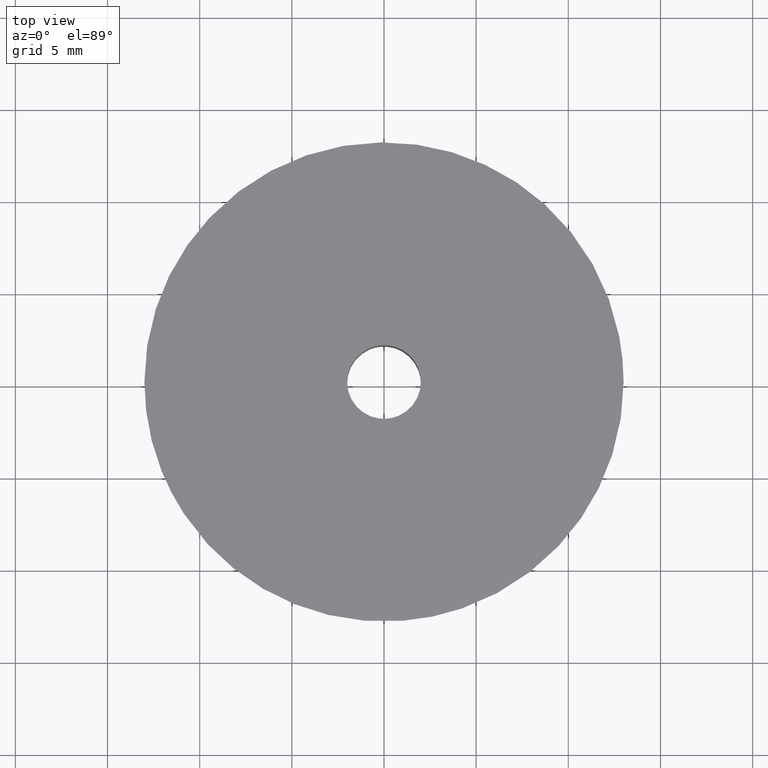
[diagram: clean part render]
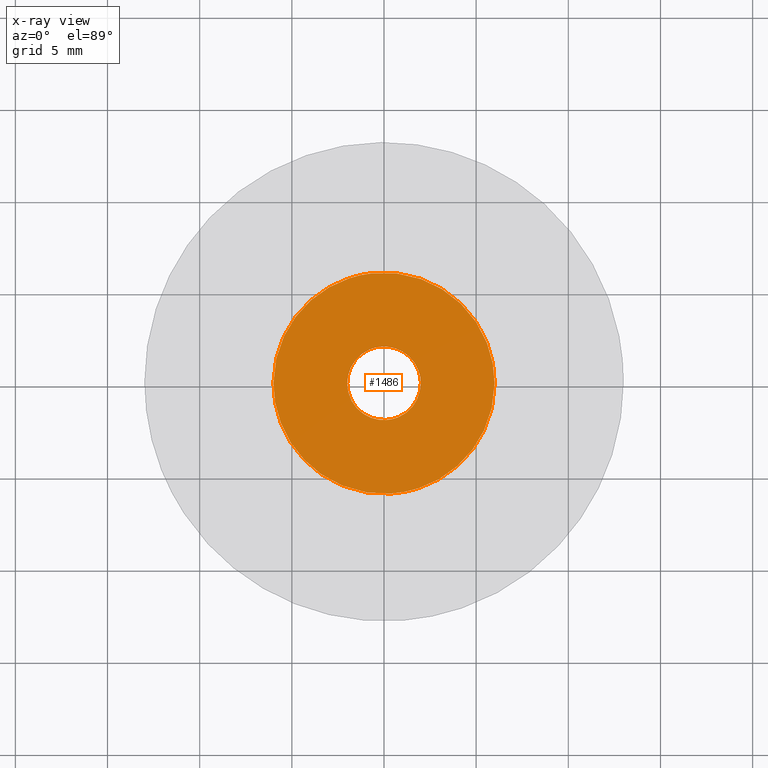
[diagram: x-ray — body ghosted, one internal face saturated and labeled with its STEP entity id]
A machine part, top view, then the same camera in x-ray: the body is ghosted and one INTERNAL B-rep face — a face not visible from any outside direction — is saturated and labeled: STEP entity #1486.
In plain terms, the highlighted face is a freeform B-spline surface patch.
Its self-contained STEP definition (entity closure, byte-faithful):
#758=CARTESIAN_POINT('',(-0.236068469352989,1.986019052722641,10.800000000000001));
#759=VERTEX_POINT('',#758);
#765=CARTESIAN_POINT('',(2.0,0.0,10.800000000000001));
#766=VERTEX_POINT('',#765);
#767=CARTESIAN_POINT('',(-0.236068469352989,1.986019052722640,10.800000000000001));
#768=CARTESIAN_POINT('',(-0.118448239343709,2.0,10.799999999999997));
#769=CARTESIAN_POINT('',(0.0,2.0,10.800000000000001));
#770=CARTESIAN_POINT('',(2.000000000000000,2.000000000000000,10.800000000000001));
#771=CARTESIAN_POINT('',(2.0,0.0,10.800000000000001));
#779=(BOUNDED_CURVE()B_SPLINE_CURVE(2,(#767,#768,#769,#770,#771),.UNSPECIFIED.,.F.,.U.)B_SPLINE_CURVE_WITH_KNOTS((3,2,3),(0.229562473508926,0.250000000000000,0.500000000000000),.UNSPECIFIED.)CURVE()GEOMETRIC_REPRESENTATION_ITEM()RATIONAL_B_SPLINE_CURVE((0.956026754174719,0.976055948325777,1.0,0.707106781186548,1.0))REPRESENTATION_ITEM(''));
#780=EDGE_CURVE('',#759,#766,#779,.T.);
#782=CARTESIAN_POINT('',(0.122097079115449,-1.996269596840936,10.800000000000001));
#783=VERTEX_POINT('',#782);
#784=CARTESIAN_POINT('',(2.0,0.0,10.800000000000001));
#785=CARTESIAN_POINT('',(1.999999999999999,-1.881412133725024,10.799999999999999));
#786=CARTESIAN_POINT('',(0.122097079115448,-1.996269596840936,10.799999999999997));
#794=(BOUNDED_CURVE()B_SPLINE_CURVE(2,(#784,#785,#786),.UNSPECIFIED.,.F.,.U.)B_SPLINE_CURVE_WITH_KNOTS((3,3),(0.500000000000000,0.739332962234062),.UNSPECIFIED.)CURVE()GEOMETRIC_REPRESENTATION_ITEM()RATIONAL_B_SPLINE_CURVE((1.0,0.719603993292428,0.976072041656258))REPRESENTATION_ITEM(''));
#795=EDGE_CURVE('',#766,#783,#794,.T.);
#869=CARTESIAN_POINT('',(-2.0,0.0,10.800000000000001));
#870=VERTEX_POINT('',#869);
#871=CARTESIAN_POINT('',(0.122097079115449,-1.996269596840937,10.800000000000001));
#872=CARTESIAN_POINT('',(0.061105526643041,-2.000000000000000,10.800000000000002));
#873=CARTESIAN_POINT('',(0.0,-2.0,10.800000000000001));
#874=CARTESIAN_POINT('',(-2.000000000000000,-2.000000000000000,10.800000000000001));
#875=CARTESIAN_POINT('',(-2.0,0.0,10.800000000000001));
#883=(BOUNDED_CURVE()B_SPLINE_CURVE(2,(#871,#872,#873,#874,#875),.UNSPECIFIED.,.F.,.U.)B_SPLINE_CURVE_WITH_KNOTS((3,2,3),(0.739332962234062,0.750000000000000,1.0),.UNSPECIFIED.)CURVE()GEOMETRIC_REPRESENTATION_ITEM()RATIONAL_B_SPLINE_CURVE((0.976072041656257,0.987502787894119,1.0,0.707106781186548,1.0))REPRESENTATION_ITEM(''));
#884=EDGE_CURVE('',#783,#870,#883,.T.);
#886=CARTESIAN_POINT('',(-2.0,0.0,10.800000000000001));
#887=CARTESIAN_POINT('',(-2.000000000000000,1.776349051831628,10.799999999999999));
#888=CARTESIAN_POINT('',(-0.236068469352989,1.986019052722640,10.800000000000001));
#896=(BOUNDED_CURVE()B_SPLINE_CURVE(2,(#886,#887,#888),.UNSPECIFIED.,.F.,.U.)B_SPLINE_CURVE_WITH_KNOTS((3,3),(0.0,0.229562473508926),.UNSPECIFIED.)CURVE()GEOMETRIC_REPRESENTATION_ITEM()RATIONAL_B_SPLINE_CURVE((1.0,0.731050832860771,0.956026754174719))REPRESENTATION_ITEM(''));
#897=EDGE_CURVE('',#870,#759,#896,.T.);
#929=CARTESIAN_POINT('',(-0.708196323685330,5.958058237969388,10.800000000000001));
#930=VERTEX_POINT('',#929);
#931=CARTESIAN_POINT('',(6.0,0.0,10.800000000000001));
#932=VERTEX_POINT('',#931);
#933=CARTESIAN_POINT('',(-0.708196323685330,5.958058237969388,10.799999999999994));
#934=CARTESIAN_POINT('',(-0.355340127766096,6.0,10.799999999999999));
#935=CARTESIAN_POINT('',(0.0,6.0,10.800000000000001));
#936=CARTESIAN_POINT('',(6.0,6.0,10.800000000000001));
#937=CARTESIAN_POINT('',(6.0,0.0,10.800000000000001));
#945=(BOUNDED_CURVE()B_SPLINE_CURVE(2,(#933,#934,#935,#936,#937),.UNSPECIFIED.,.F.,.U.)B_SPLINE_CURVE_WITH_KNOTS((3,2,3),(0.229562731195076,0.250000000000000,0.500000000000000),.UNSPECIFIED.)CURVE()GEOMETRIC_REPRESENTATION_ITEM()RATIONAL_B_SPLINE_CURVE((0.956027259250740,0.976056250223881,1.0,0.707106781186548,1.0))REPRESENTATION_ITEM(''));
#946=EDGE_CURVE('',#930,#932,#945,.T.);
#987=CARTESIAN_POINT('',(0.366281835162795,-5.988809365570175,10.800000000000150));
#988=VERTEX_POINT('',#987);
#994=CARTESIAN_POINT('',(6.0,0.0,10.800000000000001));
#995=CARTESIAN_POINT('',(5.999999999999999,-5.644245279088236,10.800000000000001));
#996=CARTESIAN_POINT('',(0.366281835162794,-5.988809365570176,10.800000000000155));
#1004=(BOUNDED_CURVE()B_SPLINE_CURVE(2,(#994,#995,#996),.UNSPECIFIED.,.F.,.U.)B_SPLINE_CURVE_WITH_KNOTS((3,3),(0.500000000000000,0.739333233129435),.UNSPECIFIED.)CURVE()GEOMETRIC_REPRESENTATION_ITEM()RATIONAL_B_SPLINE_CURVE((1.0,0.719603675918757,0.976072622237296))REPRESENTATION_ITEM(''));
#1005=EDGE_CURVE('',#932,#988,#1004,.T.);
#1032=CARTESIAN_POINT('',(-6.0,0.0,10.800000000000001));
#1033=VERTEX_POINT('',#1032);
#1034=CARTESIAN_POINT('',(-6.0,0.0,10.800000000000001));
#1035=CARTESIAN_POINT('',(-6.000000000000001,5.329055338114221,10.800000000000001));
#1036=CARTESIAN_POINT('',(-0.708196323685330,5.958058237969388,10.799999999999994));
#1044=(BOUNDED_CURVE()B_SPLINE_CURVE(2,(#1034,#1035,#1036),.UNSPECIFIED.,.F.,.U.)B_SPLINE_CURVE_WITH_KNOTS((3,3),(0.0,0.229562731195076),.UNSPECIFIED.)CURVE()GEOMETRIC_REPRESENTATION_ITEM()RATIONAL_B_SPLINE_CURVE((1.0,0.731050530962667,0.956027259250740))REPRESENTATION_ITEM(''));
#1045=EDGE_CURVE('',#1033,#930,#1044,.T.);
#1047=CARTESIAN_POINT('',(0.366281835162794,-5.988809365570176,10.800000000000155));
#1048=CARTESIAN_POINT('',(0.183311865587713,-6.000000000000001,10.799999999999995));
#1049=CARTESIAN_POINT('',(0.0,-6.0,10.800000000000001));
#1050=CARTESIAN_POINT('',(-6.0,-6.0,10.800000000000001));
#1051=CARTESIAN_POINT('',(-6.0,0.0,10.800000000000001));
#1059=(BOUNDED_CURVE()B_SPLINE_CURVE(2,(#1047,#1048,#1049,#1050,#1051),.UNSPECIFIED.,.F.,.U.)B_SPLINE_CURVE_WITH_KNOTS((3,2,3),(0.739333233129435,0.750000000000000,1.0),.UNSPECIFIED.)CURVE()GEOMETRIC_REPRESENTATION_ITEM()RATIONAL_B_SPLINE_CURVE((0.976072622237296,0.987503105267790,1.0,0.707106781186548,1.0))REPRESENTATION_ITEM(''));
#1060=EDGE_CURVE('',#988,#1033,#1059,.T.);
#1469=CARTESIAN_POINT('',(-6.599399976741671,-6.599254392664426,10.800000000000001));
#1470=CARTESIAN_POINT('',(6.599400298606753,-6.599254392664426,10.800000000000001));
#1471=CARTESIAN_POINT('',(-6.599399976741671,6.599290870707029,10.800000000000001));
#1472=CARTESIAN_POINT('',(6.599400298606753,6.599290870707029,10.800000000000001));
#1473=B_SPLINE_SURFACE_WITH_KNOTS('',1,1,((#1469,#1471),(#1470,#1472)),.UNSPECIFIED.,.F.,.F.,.U.,(2,2),(2,2),(0.0,13.198800275348420),(0.0,13.198545263371450),.UNSPECIFIED.);
#1474=ORIENTED_EDGE('',*,*,#1045,.T.);
#1475=ORIENTED_EDGE('',*,*,#946,.T.);
#1476=ORIENTED_EDGE('',*,*,#1005,.T.);
#1477=ORIENTED_EDGE('',*,*,#1060,.T.);
#1478=EDGE_LOOP('',(#1474,#1475,#1476,#1477));
#1479=FACE_OUTER_BOUND('',#1478,.T.);
#1480=ORIENTED_EDGE('',*,*,#795,.F.);
#1481=ORIENTED_EDGE('',*,*,#780,.F.);
#1482=ORIENTED_EDGE('',*,*,#897,.F.);
#1483=ORIENTED_EDGE('',*,*,#884,.F.);
#1484=EDGE_LOOP('',(#1480,#1481,#1482,#1483));
#1485=FACE_BOUND('',#1484,.T.);
#1486=ADVANCED_FACE('',(#1479,#1485),#1473,.F.);